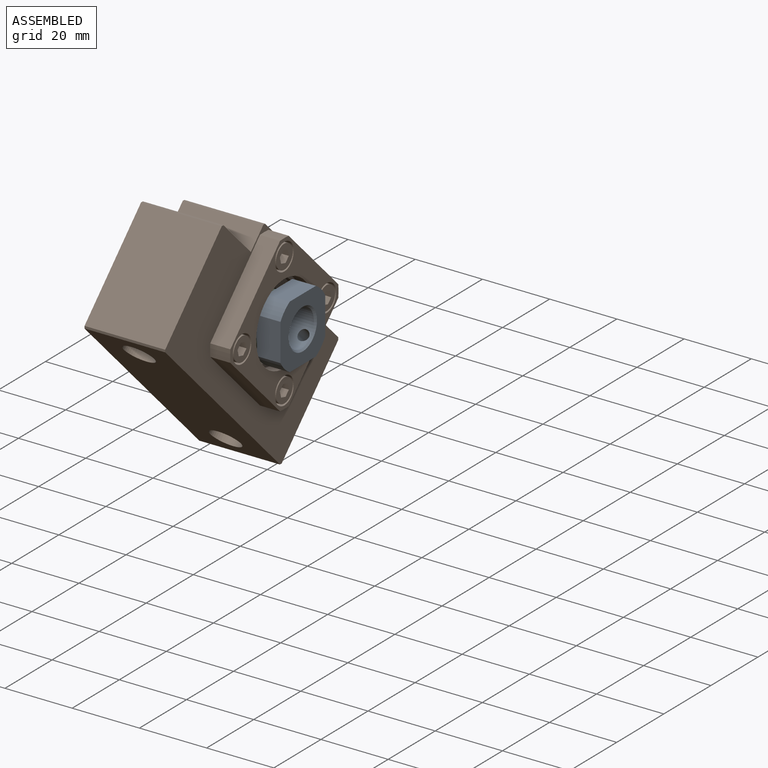
[diagram: assembled view]
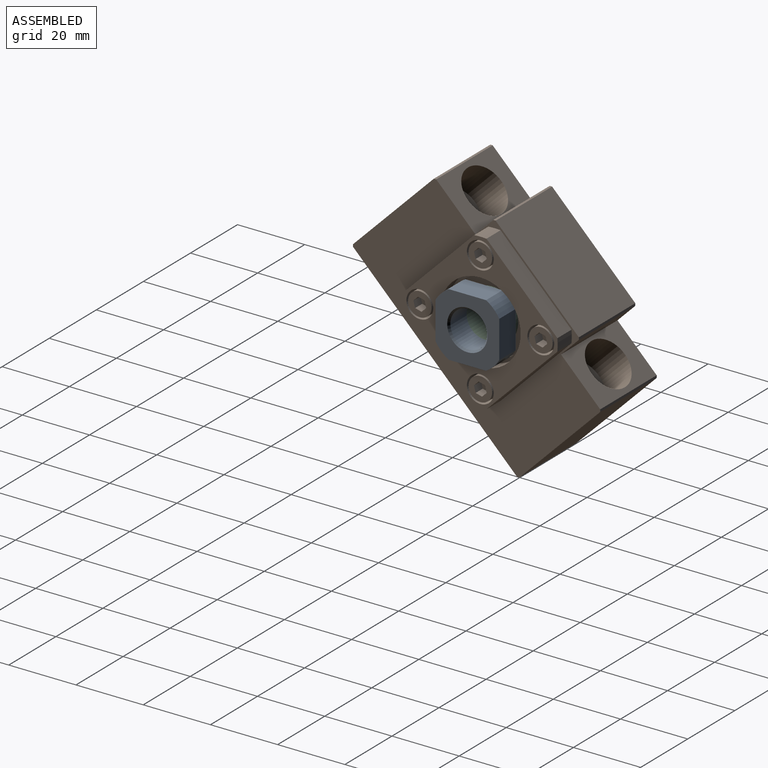
[diagram: assembled view, second angle]
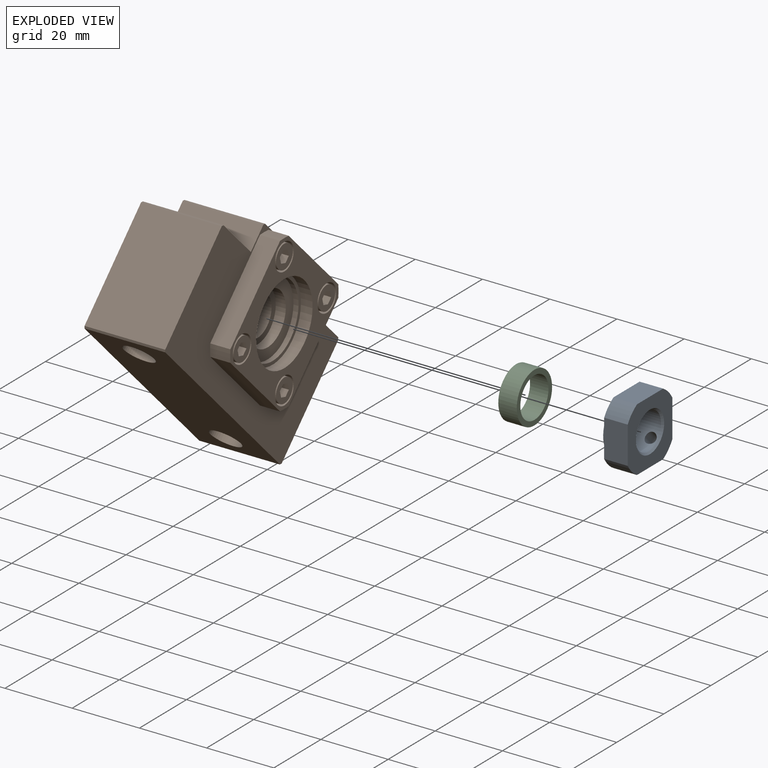
[diagram: exploded view]
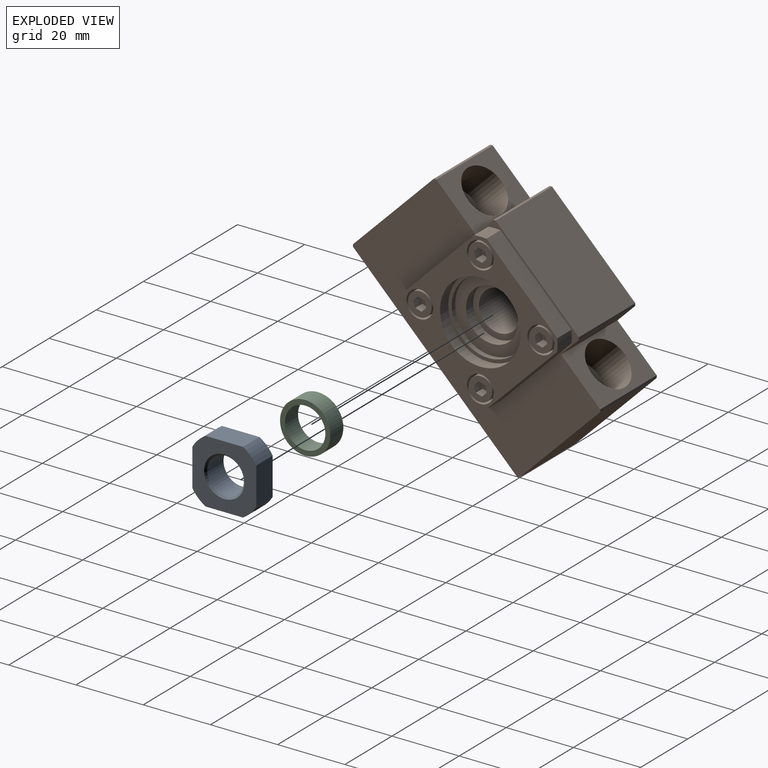
[diagram: exploded view, second angle]
ASSEMBLY  parts=3 mates=2
PART A: 17 faces, bbox 8x19x19 mm
  f0: cylinder r=11mm len=7mm, axis (-1,0,0), area 28mm2, adj f2,f4,f8,f9,f15
  f1: cylinder r=5.46mm len=10.92mm, axis (-1,0,0), area 228.9mm2, adj f13,f14,f16
  f2: plane 19x19mm, normal (1,0,0), area 222mm2, adj f0,f5,f6,f7,f8,f9,f10,f11
  f3: plane 17x17mm, normal (-1,0,0), area 113.9mm2, adj f12,f13
  f4: plane 19x19mm, normal (-1,0,0), area 108.1mm2, adj f0,f5,f6,f7,f8,f9,f10,f11
  f5: cylinder r=11mm len=7mm, axis (-1,0,0), area 39.6mm2, adj f2,f4,f6,f11
  f6: plane 11.09x7mm, normal (0,-1,0), area 77.6mm2, adj f2,f4,f5,f7
  f7: cylinder r=11mm len=7mm, axis (-1,0,0), area 39.6mm2, adj f2,f4,f6,f8
  f8: plane 11.09x7mm, normal (0,0,-1), area 77.6mm2, adj f0,f2,f4,f7
  f9: plane 11.09x7mm, normal (0,1,0), area 77.6mm2, adj f0,f2,f4,f10
  f10: cylinder r=11mm len=7mm, axis (-1,0,0), area 39.6mm2, adj f2,f4,f9,f11
  f11: plane 11.09x7mm, normal (0,0,1), area 77.6mm2, adj f2,f4,f5,f10
  f12: cylinder r=8.5mm len=17mm, axis (-1,0,0), area 53.4mm2, adj f3,f4
  f13: cone r=5.46mm half-angle=45deg, axis (-1,0,0), area 27.6mm2, adj f1,f3
  f14: cone r=6mm half-angle=45deg, axis (1,0,0), area 27.6mm2, adj f1,f2
  f15: cone r=1.62mm half-angle=45deg, axis (0,0.71,-0.71), area 4.7mm2, adj f0,f16
  f16: cylinder r=1.62mm len=6.12mm, axis (0,0.71,-0.71), area 53.8mm2, adj f1,f15
PART B: 86 faces, bbox 30x43x70 mm
  f0: plane 35x35mm, normal (1,0,0), area 559mm2, adj f18,f19,f20,f21,f22,f23,f24,f25
  f1: plane 70x43mm, normal (1,0,0), area 1524.8mm2, adj f2,f3,f4,f5,f6,f7,f8,f9
  f2: plane 69x24mm, normal (0,-1,0), area 1528.8mm2, adj f1,f6,f7,f82,f83,f85
  f3: plane 24x16.5mm, normal (0,1,0), area 242.1mm2, adj f1,f14,f15,f81,f85
  f4: plane 24x16.5mm, normal (0,1,0), area 242.1mm2, adj f1,f9,f10,f84,f85
  f5: plane 34x24mm, normal (0,0,1), area 816mm2, adj f1,f6,f15,f85
  f6: plane 24x0.5mm, normal (0,-0.71,0.71), area 17mm2, adj f1,f2,f5,f85
  f7: plane 24x0.5mm, normal (0,-0.71,-0.71), area 17mm2, adj f1,f2,f8,f85
  f8: plane 34x24mm, normal (0,0,-1), area 816mm2, adj f1,f7,f9,f85
  f9: plane 24x0.5mm, normal (0,0.71,-0.71), area 17mm2, adj f1,f4,f8,f85
  f10: plane 24x7.5mm, normal (0,0,-1), area 180mm2, adj f1,f4,f11,f85
  f11: plane 24x0.5mm, normal (0,0.71,-0.71), area 17mm2, adj f1,f10,f12,f85
  f12: plane 35x24mm, normal (0,1,0), area 840mm2, adj f1,f11,f13,f85
  f13: plane 24x0.5mm, normal (0,0.71,0.71), area 17mm2, adj f1,f12,f14,f85
  f14: plane 24x7.5mm, normal (0,0,1), area 180mm2, adj f1,f3,f13,f85
  f15: plane 24x0.5mm, normal (0,0.71,0.71), area 17mm2, adj f1,f3,f5,f85
  f16: plane 14x14mm, normal (0,1,0), area 90.3mm2, adj f83,f84
  f17: plane 14x14mm, normal (0,1,0), area 90.3mm2, adj f81,f82
  f18: cylinder r=23mm len=6mm, axis (1,0,0), area 21.9mm2, adj f0,f1,f19,f25
  f19: plane 29.85x6mm, normal (0,-1,0), area 179.1mm2, adj f0,f1,f18,f20
  f20: cylinder r=23mm len=6mm, axis (1,0,0), area 21.9mm2, adj f0,f1,f19,f21
  f21: plane 29.85x6mm, normal (0,0,-1), area 179.1mm2, adj f0,f1,f20,f22
  f22: cylinder r=23mm len=6mm, axis (1,0,0), area 21.9mm2, adj f0,f1,f21,f23
  f23: plane 29.85x6mm, normal (0,1,0), area 179.1mm2, adj f0,f1,f22,f24
  f24: cylinder r=23mm len=6mm, axis (1,0,0), area 21.9mm2, adj f0,f1,f23,f25
  f25: plane 29.85x6mm, normal (0,0,1), area 179.1mm2, adj f0,f1,f18,f24
  f26: plane 22x22mm, normal (-1,0,0), area 191.4mm2, adj f79,f80
  f27: plane 15.5x15.5mm, normal (-1,0,0), area 75.6mm2, adj f78,f79
  f28: plane 15.5x15.5mm, normal (1,0,0), area 75.6mm2, adj f77,f78
  f29: plane 22x22mm, normal (1,0,0), area 191.4mm2, adj f76,f77
  f30: plane 24x24mm, normal (1,0,0), area 72.3mm2, adj f75,f76
  f31: plane 8x8mm, normal (1,0,0), area 11.8mm2, adj f73,f74
  f32: plane 7x7mm, normal (1,0,0), area 28.5mm2, adj f39,f40,f41,f42,f43,f44,f73
  f33: plane 8x8mm, normal (1,0,0), area 11.8mm2, adj f71,f72
  f34: plane 7x7mm, normal (1,0,0), area 28.5mm2, adj f46,f47,f48,f49,f50,f51,f71
  f35: plane 8x8mm, normal (1,0,0), area 11.8mm2, adj f69,f70
  f36: plane 7x7mm, normal (1,0,0), area 28.5mm2, adj f53,f54,f55,f56,f57,f58,f69
  f37: plane 8x8mm, normal (1,0,0), area 11.8mm2, adj f67,f68
  f38: plane 7x7mm, normal (1,0,0), area 28.5mm2, adj f60,f61,f62,f63,f64,f65,f67
  f39: plane 3x1.7mm, normal (0,-0.87,-0.5), area 5.9mm2, adj f32,f40,f44,f45
  f40: plane 3x1.7mm, normal (0,-0.87,0.5), area 5.9mm2, adj f32,f39,f41,f45
  f41: plane 3x1.96mm, normal (0,0,1), area 5.9mm2, adj f32,f40,f42,f45
  f42: plane 3x1.7mm, normal (0,0.87,0.5), area 5.9mm2, adj f32,f41,f43,f45
  f43: plane 3x1.7mm, normal (0,0.87,-0.5), area 5.9mm2, adj f32,f42,f44,f45
  f44: plane 3x1.96mm, normal (0,0,-1), area 5.9mm2, adj f32,f39,f43,f45
  f45: plane 3.93x3.4mm, normal (1,0,0), area 10mm2, adj f39,f40,f41,f42,f43,f44
  f46: plane 3x1.7mm, normal (0,-0.87,-0.5), area 5.9mm2, adj f34,f47,f51,f52
  f47: plane 3x1.7mm, normal (0,-0.87,0.5), area 5.9mm2, adj f34,f46,f48,f52
  f48: plane 3x1.96mm, normal (0,0,1), area 5.9mm2, adj f34,f47,f49,f52
  f49: plane 3x1.7mm, normal (0,0.87,0.5), area 5.9mm2, adj f34,f48,f50,f52
  f50: plane 3x1.7mm, normal (0,0.87,-0.5), area 5.9mm2, adj f34,f49,f51,f52
  f51: plane 3x1.96mm, normal (0,0,-1), area 5.9mm2, adj f34,f46,f50,f52
  f52: plane 3.93x3.4mm, normal (1,0,0), area 10mm2, adj f46,f47,f48,f49,f50,f51
  f53: plane 3x1.7mm, normal (0,-0.87,-0.5), area 5.9mm2, adj f36,f54,f58,f59
  f54: plane 3x1.7mm, normal (0,-0.87,0.5), area 5.9mm2, adj f36,f53,f55,f59
  f55: plane 3x1.96mm, normal (0,0,1), area 5.9mm2, adj f36,f54,f56,f59
  f56: plane 3x1.7mm, normal (0,0.87,0.5), area 5.9mm2, adj f36,f55,f57,f59
  f57: plane 3x1.7mm, normal (0,0.87,-0.5), area 5.9mm2, adj f36,f56,f58,f59
  f58: plane 3x1.96mm, normal (0,0,-1), area 5.9mm2, adj f36,f53,f57,f59
  f59: plane 3.93x3.4mm, normal (1,0,0), area 10mm2, adj f53,f54,f55,f56,f57,f58
  f60: plane 3x1.7mm, normal (0,-0.87,-0.5), area 5.9mm2, adj f38,f61,f65,f66
  f61: plane 3x1.7mm, normal (0,-0.87,0.5), area 5.9mm2, adj f38,f60,f62,f66
  f62: plane 3x1.96mm, normal (0,0,1), area 5.9mm2, adj f38,f61,f63,f66
  f63: plane 3x1.7mm, normal (0,0.87,0.5), area 5.9mm2, adj f38,f62,f64,f66
  f64: plane 3x1.7mm, normal (0,0.87,-0.5), area 5.9mm2, adj f38,f63,f65,f66
  f65: plane 3x1.96mm, normal (0,0,-1), area 5.9mm2, adj f38,f60,f64,f66
  f66: plane 3.93x3.4mm, normal (1,0,0), area 10mm2, adj f60,f61,f62,f63,f64,f65
  f67: cylinder r=3.5mm len=7mm, axis (-1,0,0), area 88mm2, adj f37,f38
  f68: cylinder r=4mm len=8mm, axis (-1,0,0), area 100.5mm2, adj f0,f37
  f69: cylinder r=3.5mm len=7mm, axis (-1,0,0), area 88mm2, adj f35,f36
  f70: cylinder r=4mm len=8mm, axis (-1,0,0), area 100.5mm2, adj f0,f35
  f71: cylinder r=3.5mm len=7mm, axis (-1,0,0), area 88mm2, adj f33,f34
  f72: cylinder r=4mm len=8mm, axis (-1,0,0), area 100.5mm2, adj f0,f33
  f73: cylinder r=3.5mm len=7mm, axis (-1,0,0), area 88mm2, adj f31,f32
  f74: cylinder r=4mm len=8mm, axis (-1,0,0), area 100.5mm2, adj f0,f31
  f75: cylinder r=12mm len=24mm, axis (1,0,0), area 263.9mm2, adj f0,f30
  f76: cylinder r=11mm len=22mm, axis (1,0,0), area 103.7mm2, adj f29,f30
  f77: cylinder r=7.75mm len=15.5mm, axis (1,0,0), area 146.1mm2, adj f28,f29
  f78: cylinder r=6mm len=16mm, axis (1,0,0), area 603.2mm2, adj f27,f28
  f79: cylinder r=7.75mm len=15.5mm, axis (1,0,0), area 146.1mm2, adj f26,f27
  f80: cylinder r=11mm len=22mm, axis (1,0,0), area 207.3mm2, adj f26,f85
  f81: cylinder r=7mm len=14mm, axis (0,1,0), area 483.8mm2, adj f3,f17
  f82: cylinder r=4.5mm len=24mm, axis (0,1,0), area 678.6mm2, adj f2,f17
  f83: cylinder r=4.5mm len=24mm, axis (0,-1,0), area 678.6mm2, adj f2,f16
  f84: cylinder r=7mm len=14mm, axis (0,-1,0), area 483.8mm2, adj f4,f16
  f85: plane 70x43mm, normal (-1,0,0), area 2357.1mm2, adj f2,f3,f4,f5,f6,f7,f8,f9
PART C: 4 faces, bbox 15x15x5.5 mm
  f0: plane 15x15mm, normal (0,0,1), area 63.6mm2, adj f1,f3
  f1: cylinder r=6mm len=12mm, axis (0,0,1), area 207.3mm2, adj f0,f2
  f2: plane 15x15mm, normal (0,0,-1), area 63.6mm2, adj f1,f3
  f3: cylinder r=7.5mm len=15mm, axis (0,0,1), area 259.2mm2, adj f0,f2
PLACE A t=(-12.57,-5.47,-8.45)mm
PLACE B rot(axis=(1,0,0),45deg) t=(-29.07,-23.14,-26.13)mm
PLACE C rot(axis=(0.71,0,-0.71),180deg) t=(-19.07,-5.47,-8.45)mm
MATE revolute C.f1 <-> A.f1  axis (1,0,0) through (-13.57,-5.47,-8.45)mm
MATE revolute C.f1 <-> B.f75  axis (-1,0,0) through (-19.07,-5.47,-8.45)mm
